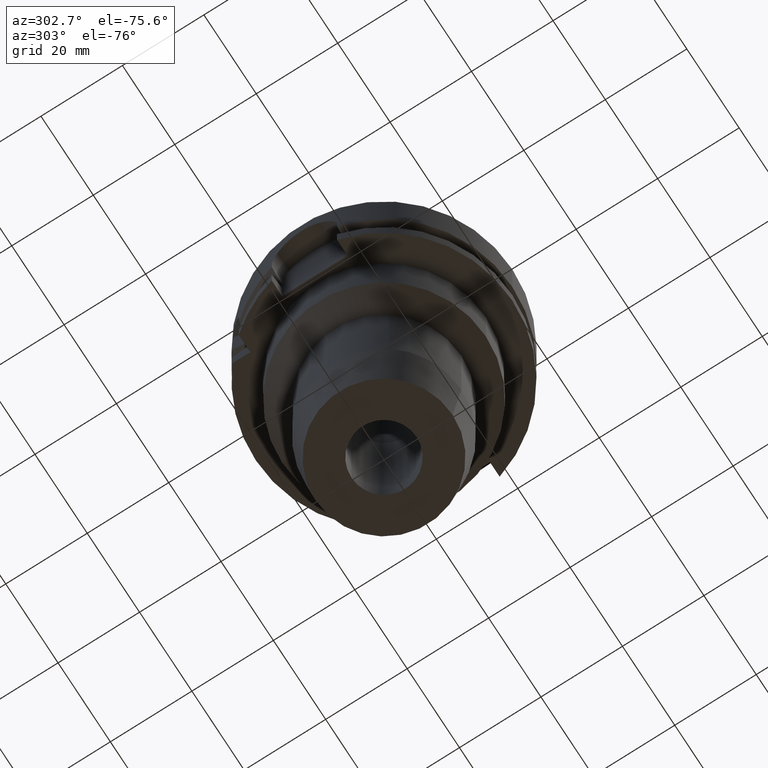
[diagram: clean part render]
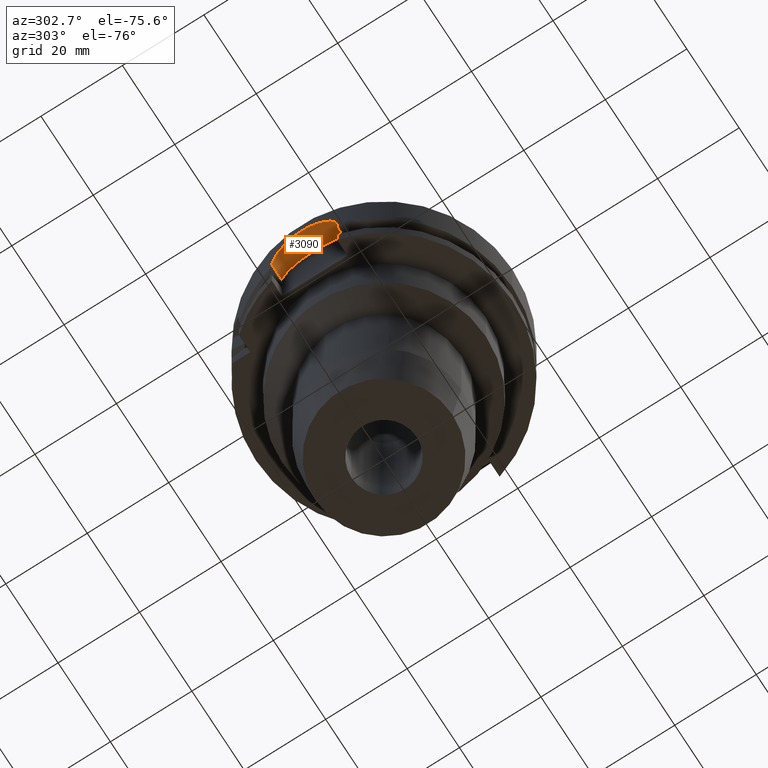
[diagram: same view with one face highlighted and labeled with its STEP entity id]
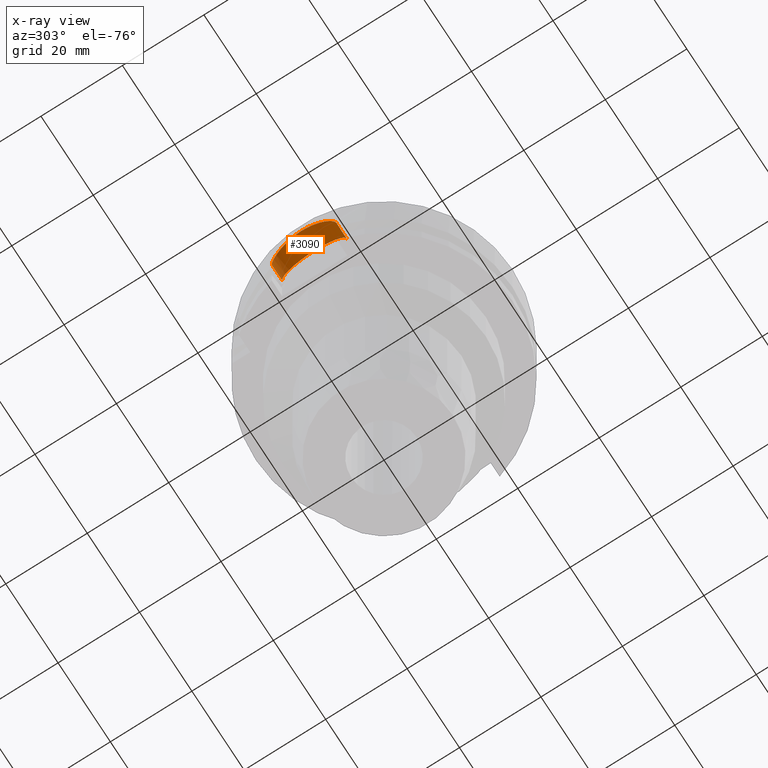
[diagram: x-ray of the same camera — body ghosted, the highlighted face saturated]
A machine part, auxiliary view. The second image highlights one B-rep face of the part: STEP entity #3090.
The next image is the same camera in x-ray: the body ghosted, the highlighted face saturated — about 1% of this face is hidden behind the body in this view.
In plain terms, the highlighted cylindrical surface (partial cylindrical patch) has radius 8 mm, axis along (1, 0, 0).
Its self-contained STEP definition (entity closure, byte-faithful):
#846=CARTESIAN_POINT('',(-3.046719547316E1,8.E0,-1.3E1));
#847=CARTESIAN_POINT('',(-3.046719547316E1,8.E0,-1.245224003607E1));
#848=CARTESIAN_POINT('',(-3.049727303426E1,7.887058323595E0,-1.135073918024E1));
#849=CARTESIAN_POINT('',(-3.062689466042E1,7.375462100777E0,-9.752102770187E0));
#850=CARTESIAN_POINT('',(-3.082074453848E1,6.532773635205E0,-8.278876849185E0));
#851=CARTESIAN_POINT('',(-3.104430623296E1,5.390237385849E0,-7.006966913826E0));
#852=CARTESIAN_POINT('',(-3.125563068838E1,4.008870959063E0,-6.008196302168E0));
#853=CARTESIAN_POINT('',(-3.141705811214E1,2.464778611533E0,-5.328000548067E0));
#854=CARTESIAN_POINT('',(-3.150356827909E1,8.304197450128E-1,
-4.985634634504E0));
#855=CARTESIAN_POINT('',(-3.150352683520E1,-8.321668194072E-1,
-4.985822563404E0));
#856=CARTESIAN_POINT('',(-3.141693342003E1,-2.466337132339E0,
-5.328506065960E0));
#857=CARTESIAN_POINT('',(-3.125544521441E1,-4.010327446364E0,
-6.009023176732E0));
#858=CARTESIAN_POINT('',(-3.104408251685E1,-5.391520358267E0,
-7.008128874597E0));
#859=CARTESIAN_POINT('',(-3.082053940857E1,-6.533720827611E0,
-8.280182636067E0));
#860=CARTESIAN_POINT('',(-3.062672186404E1,-7.376197431370E0,
-9.753750452463E0));
#861=CARTESIAN_POINT('',(-3.049718861268E1,-7.887319828262E0,
-1.135225951337E1));
#862=CARTESIAN_POINT('',(-3.046719547316E1,-8.E0,-1.245284904069E1));
#863=CARTESIAN_POINT('',(-3.046719547316E1,-8.E0,-1.3E1));
#868=DIRECTION('',(1.E0,8.686570378874E-14,0.E0));
#869=VECTOR('',#868,3.967195473161E0);
#870=CARTESIAN_POINT('',(-3.046719547316E1,-8.E0,-1.3E1));
#871=LINE('',#870,#869);
#875=DIRECTION('',(-1.E0,8.776122650821E-14,0.E0));
#876=VECTOR('',#875,3.967195473161E0);
#877=CARTESIAN_POINT('',(-2.65E1,8.E0,-1.3E1));
#878=LINE('',#877,#876);
#949=CARTESIAN_POINT('',(-2.65E1,0.E0,-1.3E1));
#950=DIRECTION('',(1.E0,0.E0,0.E0));
#951=DIRECTION('',(0.E0,1.E0,0.E0));
#952=AXIS2_PLACEMENT_3D('',#949,#950,#951);
#957=CARTESIAN_POINT('',(-2.65E1,0.E0,-1.3E1));
#958=DIRECTION('',(1.E0,0.E0,0.E0));
#959=DIRECTION('',(0.E0,0.E0,1.E0));
#960=AXIS2_PLACEMENT_3D('',#957,#958,#959);
#2470=CARTESIAN_POINT('',(-2.65E1,-8.E0,-1.3E1));
#2471=VERTEX_POINT('',#2470);
#2472=CARTESIAN_POINT('',(-3.046719547316E1,-8.E0,-1.3E1));
#2473=VERTEX_POINT('',#2472);
#2484=CARTESIAN_POINT('',(-2.65E1,8.E0,-1.3E1));
#2485=VERTEX_POINT('',#2484);
#2486=CARTESIAN_POINT('',(-2.65E1,0.E0,-5.E0));
#2487=VERTEX_POINT('',#2486);
#2496=CARTESIAN_POINT('',(-3.046719547316E1,8.E0,-1.3E1));
#2497=VERTEX_POINT('',#2496);
#3075=CARTESIAN_POINT('',(-3.15E1,0.E0,-1.3E1));
#3076=DIRECTION('',(1.E0,0.E0,0.E0));
#3077=DIRECTION('',(0.E0,0.E0,1.E0));
#3078=AXIS2_PLACEMENT_3D('',#3075,#3076,#3077);
#3079=CYLINDRICAL_SURFACE('',#3078,8.E0);
#3080=ORIENTED_EDGE('',*,*,#2962,.T.);
#3082=ORIENTED_EDGE('',*,*,#3081,.T.);
#3084=ORIENTED_EDGE('',*,*,#3083,.F.);
#3086=ORIENTED_EDGE('',*,*,#3085,.F.);
#3087=ORIENTED_EDGE('',*,*,#3068,.T.);
#3088=EDGE_LOOP('',(#3080,#3082,#3084,#3086,#3087));
#3089=FACE_OUTER_BOUND('',#3088,.F.);
#864=B_SPLINE_CURVE_WITH_KNOTS('',3,(#846,#847,#848,#849,#850,#851,#852,#853,
#854,#855,#856,#857,#858,#859,#860,#861,#862,#863),.UNSPECIFIED.,.F.,.F.,(4,1,1,
1,1,1,1,1,1,1,1,1,1,1,1,4),(0.E0,6.666666666667E-2,1.333333333333E-1,2.E-1,
2.666666666667E-1,3.333333333333E-1,4.E-1,4.666666666667E-1,5.333333333333E-1,
6.E-1,6.666666666667E-1,7.333333333333E-1,8.E-1,8.666666666667E-1,
9.333333333333E-1,1.E0),.UNSPECIFIED.);
#953=CIRCLE('',#952,8.E0);
#961=CIRCLE('',#960,8.E0);
#2962=EDGE_CURVE('',#2497,#2473,#864,.T.);
#3068=EDGE_CURVE('',#2485,#2497,#878,.T.);
#3081=EDGE_CURVE('',#2473,#2471,#871,.T.);
#3083=EDGE_CURVE('',#2487,#2471,#961,.T.);
#3085=EDGE_CURVE('',#2485,#2487,#953,.T.);
#3090=ADVANCED_FACE('',(#3089),#3079,.F.);